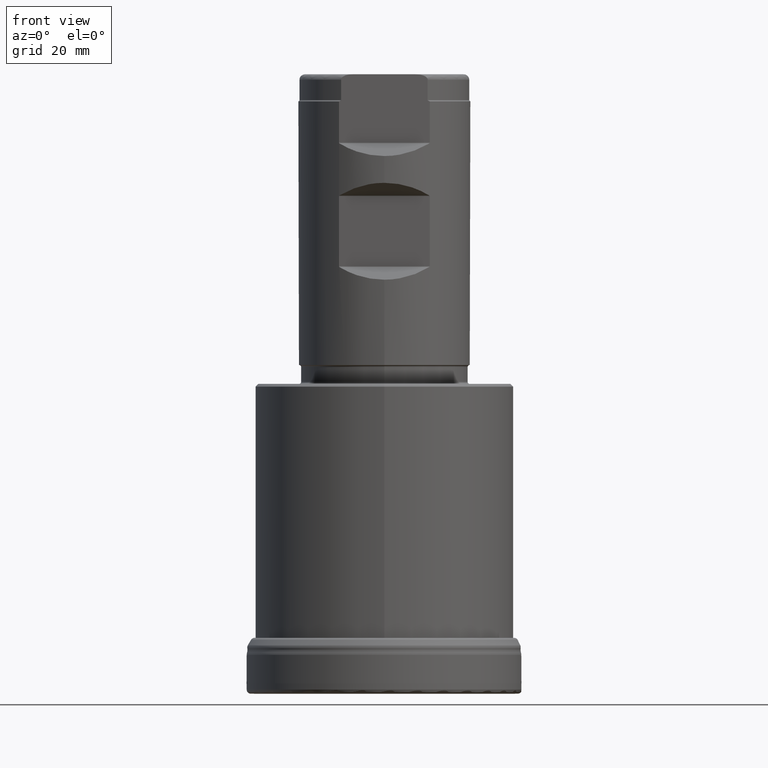
[diagram: clean part render]
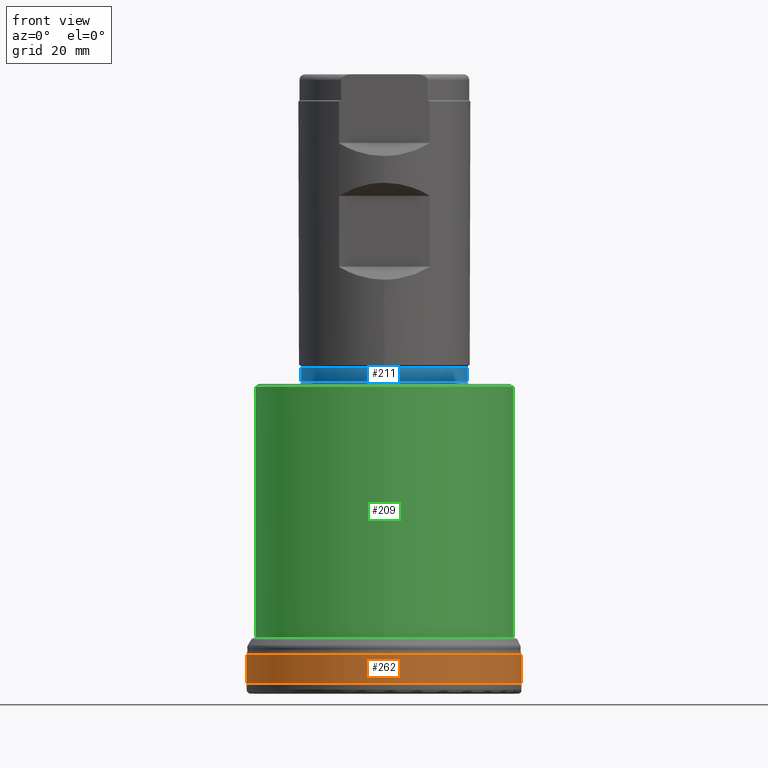
[diagram: same view with three faces highlighted in distinct colors, each labeled with its STEP entity id]
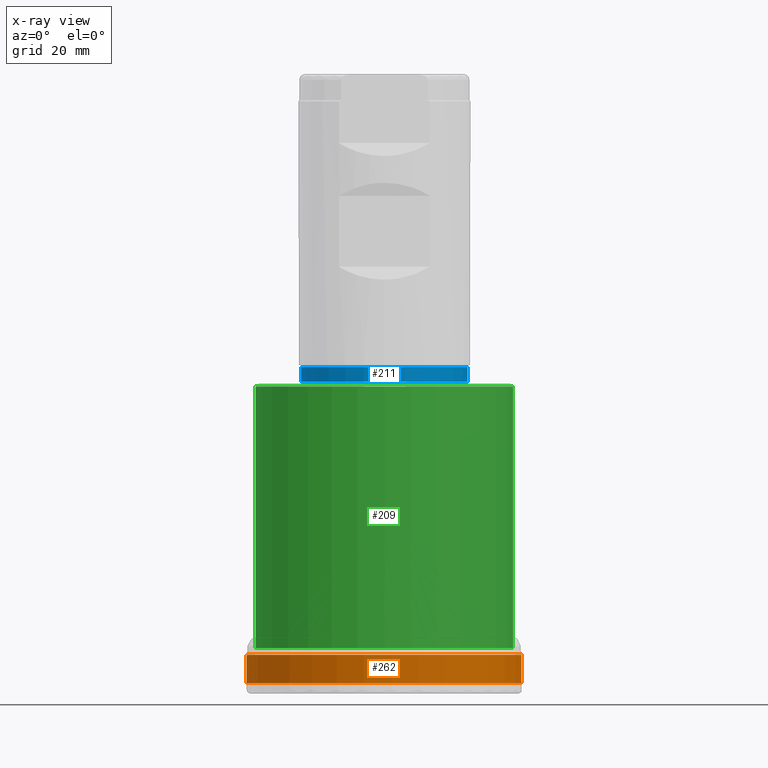
[diagram: x-ray of the same camera — body ghosted, the three highlighted faces saturated]
A machine part, front view with three faces highlighted in distinct colors.
The next image is the same camera in x-ray (body ghosted, the three faces saturated) — at least one of them is partly hidden behind the body in this view.
Their STEP definitions:

[orange] entity #262 — the highlighted face is a SurfaceOfRevolution surface.
#121=SURFACE_OF_REVOLUTION('',#1148,#144);
#144=AXIS1_PLACEMENT('',#2867,#1527);
#262=ADVANCED_FACE('',(#462,#463),#121,.F.);
#348=CIRCLE('',#1267,25.4086227540537);
#349=CIRCLE('',#1268,25.4342689262902);
#462=FACE_BOUND('',#596,.T.);
#463=FACE_BOUND('',#597,.T.);
#596=EDGE_LOOP('',(#851));
#597=EDGE_LOOP('',(#852));
#851=ORIENTED_EDGE('',*,*,#1070,.T.);
#852=ORIENTED_EDGE('',*,*,#1071,.F.);
#957=VERTEX_POINT('',#2843);
#958=VERTEX_POINT('',#2860);
#1070=EDGE_CURVE('',#957,#957,#348,.T.);
#1071=EDGE_CURVE('',#958,#958,#349,.T.);
#1148=B_SPLINE_CURVE_WITH_KNOTS('',5,(#2861,#2862,#2863,#2864,#2865,#2866),
 .UNSPECIFIED.,.F.,.F.,(6,6),(0.,1.),.UNSPECIFIED.);
#1267=AXIS2_PLACEMENT_3D('',#2842,#1522,#1523);
#1268=AXIS2_PLACEMENT_3D('',#2859,#1525,#1526);
#1522=DIRECTION('',(0.,0.,-1.));
#1523=DIRECTION('',(-1.,0.,0.));
#1525=DIRECTION('',(0.,0.,-1.));
#1526=DIRECTION('',(-1.,0.,0.));
#1527=DIRECTION('',(0.,0.,-1.));
#2842=CARTESIAN_POINT('',(0.,0.,7.14607554243699));
#2843=CARTESIAN_POINT('',(-25.4086227540537,0.,7.14607554243699));
#2859=CARTESIAN_POINT('',(0.,0.,1.90791295575333));
#2860=CARTESIAN_POINT('',(-25.4342689262902,0.,1.90791295575333));
#2861=CARTESIAN_POINT('',(22.0267230168523,-12.7171344631451,1.90791295575363));
#2862=CARTESIAN_POINT('',(22.0400827103869,-12.7248476858037,2.95551207055949));
#2863=CARTESIAN_POINT('',(22.04454743395,-12.7274253951546,4.00326264544425));
#2864=CARTESIAN_POINT('',(22.0401290639988,-12.7248744480739,5.05102914075292));
#2865=CARTESIAN_POINT('',(22.0268027748261,-12.7171805114328,6.09867967476709));
#2866=CARTESIAN_POINT('',(22.0045127801858,-12.704311377027,7.14607554243699));
#2867=CARTESIAN_POINT('',(0.,0.,0.));

[blue] entity #211 — the highlighted cylindrical surface (bore or boss wall) has radius 15.475 mm, axis along (0, 0, 1).
#211=ADVANCED_FACE('',(#376,#377),#276,.T.);
#276=CYLINDRICAL_SURFACE('',#1197,15.475);
#314=CIRCLE('',#1195,15.475);
#315=CIRCLE('',#1196,15.475);
#376=FACE_BOUND('',#504,.T.);
#377=FACE_BOUND('',#505,.T.);
#504=EDGE_LOOP('',(#698));
#505=EDGE_LOOP('',(#699));
#698=ORIENTED_EDGE('',*,*,#1015,.T.);
#699=ORIENTED_EDGE('',*,*,#1016,.T.);
#916=VERTEX_POINT('',#2175);
#917=VERTEX_POINT('',#2177);
#1015=EDGE_CURVE('',#916,#916,#314,.T.);
#1016=EDGE_CURVE('',#917,#917,#315,.T.);
#1195=AXIS2_PLACEMENT_3D('',#2174,#1360,#1361);
#1196=AXIS2_PLACEMENT_3D('',#2176,#1362,#1363);
#1197=AXIS2_PLACEMENT_3D('',#2178,#1364,#1365);
#1360=DIRECTION('',(0.,1.17145536458252E-15,1.));
#1361=DIRECTION('',(0.,-1.,1.34518137070899E-15));
#1362=DIRECTION('',(0.,-1.17145536458252E-15,-1.));
#1363=DIRECTION('',(0.,1.,-1.34518137070899E-15));
#1364=DIRECTION('',(0.,1.17145536458252E-15,1.));
#1365=DIRECTION('',(0.,-1.,1.17145536458252E-15));
#2174=CARTESIAN_POINT('',(0.,6.74172562317243E-14,57.55));
#2175=CARTESIAN_POINT('',(0.,-15.4749999999999,57.55));
#2176=CARTESIAN_POINT('',(0.,7.05801857160971E-14,60.25));
#2177=CARTESIAN_POINT('',(0.,15.4750000000001,60.25));
#2178=CARTESIAN_POINT('',(0.,0.,0.));

[green] entity #209 — the highlighted cylindrical surface (bore or boss wall) has radius 23.9 mm, axis along (0, 0, 1).
#209=ADVANCED_FACE('',(#372,#373),#275,.T.);
#275=CYLINDRICAL_SURFACE('',#1191,23.9);
#310=CIRCLE('',#1189,23.9);
#311=CIRCLE('',#1190,23.9);
#372=FACE_BOUND('',#500,.T.);
#373=FACE_BOUND('',#501,.T.);
#500=EDGE_LOOP('',(#694));
#501=EDGE_LOOP('',(#695));
#694=ORIENTED_EDGE('',*,*,#1011,.T.);
#695=ORIENTED_EDGE('',*,*,#1012,.T.);
#912=VERTEX_POINT('',#2165);
#913=VERTEX_POINT('',#2167);
#1011=EDGE_CURVE('',#912,#912,#310,.T.);
#1012=EDGE_CURVE('',#913,#913,#311,.T.);
#1189=AXIS2_PLACEMENT_3D('',#2164,#1348,#1349);
#1190=AXIS2_PLACEMENT_3D('',#2166,#1350,#1351);
#1191=AXIS2_PLACEMENT_3D('',#2168,#1352,#1353);
#1348=DIRECTION('',(0.,-1.17145536458252E-15,-1.));
#1349=DIRECTION('',(0.,-1.,1.16132115546564E-15));
#1350=DIRECTION('',(0.,1.17145536458252E-15,1.));
#1351=DIRECTION('',(0.,-1.,1.16132115546564E-15));
#1352=DIRECTION('',(0.,1.17145536458252E-15,1.));
#1353=DIRECTION('',(0.,-1.,1.17145536458252E-15));
#2164=CARTESIAN_POINT('',(0.,6.63629464036E-14,56.65));
#2165=CARTESIAN_POINT('',(0.,-23.8999999999999,56.65));
#2166=CARTESIAN_POINT('',(0.,9.8208349418775E-15,8.38344783659545));
#2167=CARTESIAN_POINT('',(0.,-23.9,8.38344783659548));
#2168=CARTESIAN_POINT('',(0.,0.,0.));